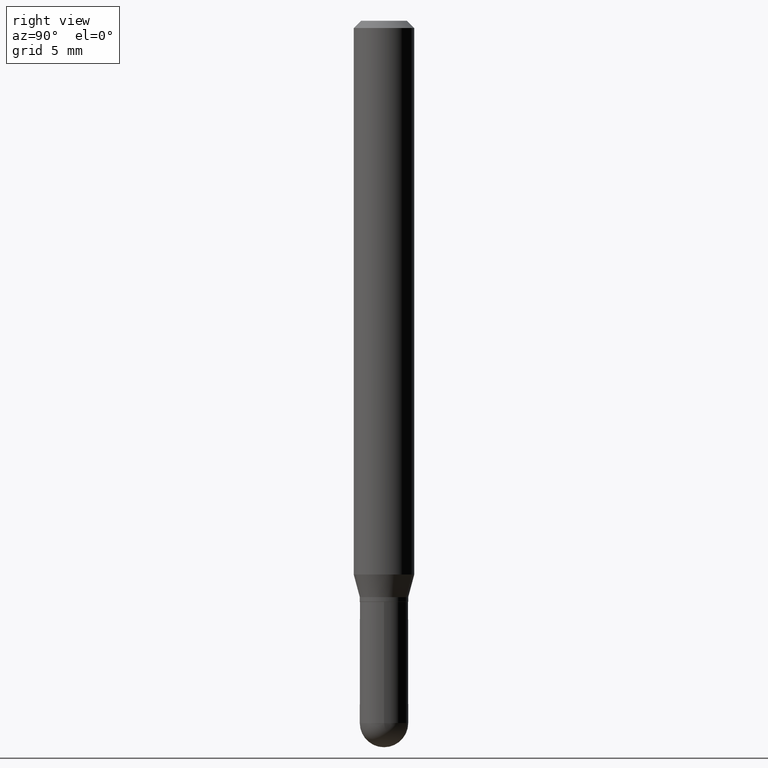
[diagram: clean part render]
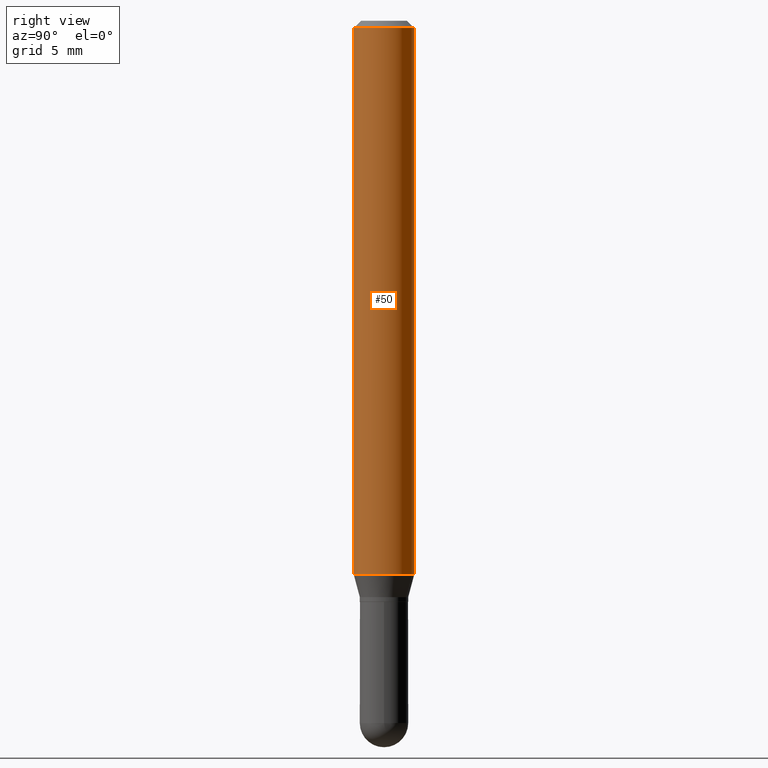
[diagram: same view with one face highlighted and labeled with its STEP entity id]
A machine part, right view. The second image highlights one B-rep face of the part: STEP entity #50.
In plain terms, the highlighted cylindrical surface (edge-blend (fillet) strip) has radius 1.5875 mm, axis along (-0, 0, 1).
Its self-contained STEP definition (entity closure, byte-faithful):
#10 = DIRECTION ( 'NONE',  ( -2.445402867913384779E-29, 3.491575766201267725E-15, 1.000000000000000000 ) ) ;
#40 = DIRECTION ( 'NONE',  ( -2.445402867913384779E-29, 3.491575766201267725E-15, 1.000000000000000000 ) ) ;
#50 = ADVANCED_FACE ( 'NONE', ( #400 ), #326, .T. ) ;
#71 = CARTESIAN_POINT ( 'NONE',  ( 4.440892098500907193E-16, 0.06249999999999995143, -0.01500000000000028394 ) ) ;
#80 = DIRECTION ( 'NONE',  ( -2.445402867913384779E-29, 3.491575766201267725E-15, 1.000000000000000000 ) ) ;
#101 = AXIS2_PLACEMENT_3D ( 'NONE', #316, #430, #437 ) ;
#104 = ORIENTED_EDGE ( 'NONE', *, *, #283, .T. ) ;
#145 = AXIS2_PLACEMENT_3D ( 'NONE', #409, #80, #378 ) ;
#146 = VECTOR ( 'NONE', #484, 39.37007874015748143 ) ;
#150 = EDGE_CURVE ( 'NONE', #503, #247, #286, .T. ) ;
#152 = CIRCLE ( 'NONE', #511, 0.06250000000000000000 ) ;
#153 = VERTEX_POINT ( 'NONE', #250 ) ;
#179 = EDGE_LOOP ( 'NONE', ( #104, #452, #392, #219 ) ) ;
#205 = VERTEX_POINT ( 'NONE', #368 ) ;
#209 = LINE ( 'NONE', #487, #333 ) ;
#219 = ORIENTED_EDGE ( 'NONE', *, *, #455, .F. ) ;
#247 = VERTEX_POINT ( 'NONE', #71 ) ;
#250 = CARTESIAN_POINT ( 'NONE',  ( -4.364351673553637142E-16, -0.06250000000000399680, -1.143349364905389409 ) ) ;
#283 = EDGE_CURVE ( 'NONE', #153, #503, #390, .T. ) ;
#286 = LINE ( 'NONE', #320, #146 ) ;
#300 = CARTESIAN_POINT ( 'NONE',  ( 3.668104301870093617E-31, -5.237363649301924489E-17, -0.01500000000000006710 ) ) ;
#316 = CARTESIAN_POINT ( 'NONE',  ( 2.795949815966586689E-29, -3.992090934805268483E-15, -1.143349364905389631 ) ) ;
#320 = CARTESIAN_POINT ( 'NONE',  ( 4.440892098500625669E-16, 0.06250000000000000000, -2.182234853875792328E-16 ) ) ;
#326 = CYLINDRICAL_SURFACE ( 'NONE', #145, 0.06250000000000000000 ) ;
#333 = VECTOR ( 'NONE', #10, 39.37007874015748143 ) ;
#367 = CARTESIAN_POINT ( 'NONE',  ( 4.440892098500904235E-16, 0.06249999999999599626, -1.143349364905389853 ) ) ;
#368 = CARTESIAN_POINT ( 'NONE',  ( -4.364351673553912750E-16, -0.06250000000000005551, -0.01499999999999984852 ) ) ;
#378 = DIRECTION ( 'NONE',  ( -6.982962677686265922E-15, -1.000000000000000000, 3.491575766201267725E-15 ) ) ;
#390 = CIRCLE ( 'NONE', #101, 0.06250000000000000000 ) ;
#392 = ORIENTED_EDGE ( 'NONE', *, *, #416, .F. ) ;
#400 = FACE_OUTER_BOUND ( 'NONE', #179, .T. ) ;
#409 = CARTESIAN_POINT ( 'NONE',  ( 0.000000000000000000, 0.000000000000000000, 0.000000000000000000 ) ) ;
#416 = EDGE_CURVE ( 'NONE', #205, #247, #152, .T. ) ;
#430 = DIRECTION ( 'NONE',  ( -2.445402867913384779E-29, 3.491575766201267725E-15, 1.000000000000000000 ) ) ;
#437 = DIRECTION ( 'NONE',  ( -6.982962677686265922E-15, -1.000000000000000000, 4.370956789862821150E-15 ) ) ;
#449 = DIRECTION ( 'NONE',  ( -6.982962677686265922E-15, -1.000000000000000000, 3.483106191921935554E-15 ) ) ;
#452 = ORIENTED_EDGE ( 'NONE', *, *, #150, .T. ) ;
#455 = EDGE_CURVE ( 'NONE', #153, #205, #209, .T. ) ;
#484 = DIRECTION ( 'NONE',  ( -2.445402867913384779E-29, 3.491575766201267725E-15, 1.000000000000000000 ) ) ;
#487 = CARTESIAN_POINT ( 'NONE',  ( -4.364351673553916201E-16, -0.06250000000000000000, 2.182234853875792328E-16 ) ) ;
#503 = VERTEX_POINT ( 'NONE', #367 ) ;
#511 = AXIS2_PLACEMENT_3D ( 'NONE', #300, #40, #449 ) ;